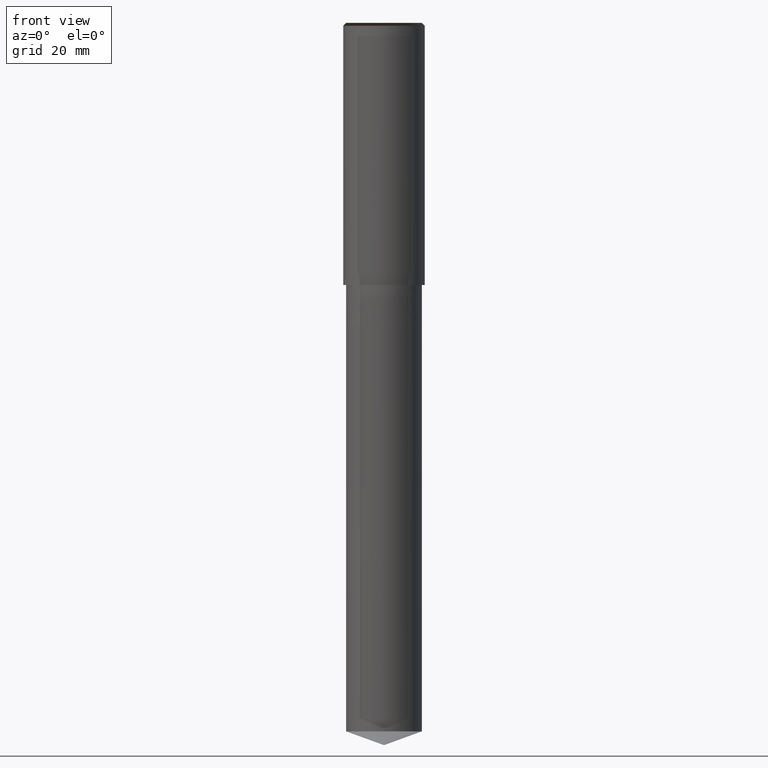
[diagram: clean part render]
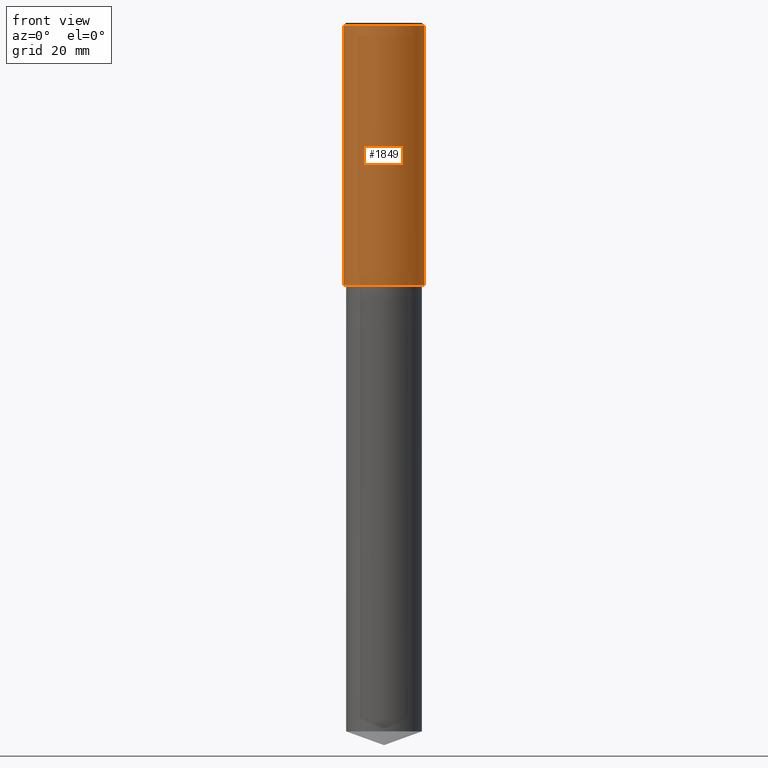
[diagram: same view with one face highlighted and labeled with its STEP entity id]
A machine part, front view. The second image highlights one B-rep face of the part: STEP entity #1849.
In plain terms, the highlighted face is a freeform B-spline surface patch.
Its self-contained STEP definition (entity closure, byte-faithful):
#1478=CARTESIAN_POINT('',(7.0,0.0,0.0));
#1482=CARTESIAN_POINT('',(-7.0,0.0,0.0));
#1483=CARTESIAN_POINT('',(7.0,0.0,44.5));
#1487=CARTESIAN_POINT('',(-7.0,0.0,44.5));
#1500=CARTESIAN_POINT('',(-7.0,-7.0,0.0));
#1501=CARTESIAN_POINT('',(0.0,-7.0,0.0));
#1502=CARTESIAN_POINT('',(7.0,-7.0,0.0));
#1503=CARTESIAN_POINT('',(-7.0,-7.0,44.5));
#1504=CARTESIAN_POINT('',(0.0,-7.0,44.5));
#1505=CARTESIAN_POINT('',(7.0,-7.0,44.5));
#1830=(
BOUNDED_SURFACE()
B_SPLINE_SURFACE(1,2,(
(#1482,#1500,#1501,#1502,#1478),
(#1487,#1503,#1504,#1505,#1483)
), .UNSPECIFIED.,.F.,.F.,.F.)
B_SPLINE_SURFACE_WITH_KNOTS((2,2),(3,2,3),(
0.0,1.0),(
0.0,0.5,1.0), .UNSPECIFIED.)
GEOMETRIC_REPRESENTATION_ITEM()
RATIONAL_B_SPLINE_SURFACE(((1.0,0.707106781187,1.0,0.707106781187,1.0),
(1.0,0.707106781187,1.0,0.707106781187,1.0)
))
REPRESENTATION_ITEM('')
SURFACE()
);
#1831=(
BOUNDED_CURVE()
B_SPLINE_CURVE(2,(#1478,#1502,#1501,#1500,#1482),.UNSPECIFIED.,.F.,.F.)
B_SPLINE_CURVE_WITH_KNOTS((3,2,3),
(0.0,0.5,1.0),.UNSPECIFIED.)
CURVE()
GEOMETRIC_REPRESENTATION_ITEM()
RATIONAL_B_SPLINE_CURVE((1.0,0.707106781187,1.0,0.707106781187,1.0))
REPRESENTATION_ITEM('')
);
#1832=(
BOUNDED_CURVE()
B_SPLINE_CURVE(1,(#1482,#1487),.UNSPECIFIED.,.F.,.F.)
B_SPLINE_CURVE_WITH_KNOTS((2,2),
(0.0,1.0),.UNSPECIFIED.)
CURVE()
GEOMETRIC_REPRESENTATION_ITEM()
RATIONAL_B_SPLINE_CURVE((1.0,1.0))
REPRESENTATION_ITEM('')
);
#1833=(
BOUNDED_CURVE()
B_SPLINE_CURVE(2,(#1487,#1503,#1504,#1505,#1483),.UNSPECIFIED.,.F.,.F.)
B_SPLINE_CURVE_WITH_KNOTS((3,2,3),
(0.0,0.5,1.0),.UNSPECIFIED.)
CURVE()
GEOMETRIC_REPRESENTATION_ITEM()
RATIONAL_B_SPLINE_CURVE((1.0,0.707106781187,1.0,0.707106781187,1.0))
REPRESENTATION_ITEM('')
);
#1834=(
BOUNDED_CURVE()
B_SPLINE_CURVE(1,(#1483,#1478),.UNSPECIFIED.,.F.,.F.)
B_SPLINE_CURVE_WITH_KNOTS((2,2),
(0.0,1.0),.UNSPECIFIED.)
CURVE()
GEOMETRIC_REPRESENTATION_ITEM()
RATIONAL_B_SPLINE_CURVE((1.0,1.0))
REPRESENTATION_ITEM('')
);
#1835=VERTEX_POINT('',#1478);
#1836=VERTEX_POINT('',#1482);
#1837=VERTEX_POINT('',#1483);
#1838=VERTEX_POINT('',#1487);
#1839=EDGE_CURVE('',#1835,#1836,#1831,.T.);
#1840=EDGE_CURVE('',#1836,#1838,#1832,.T.);
#1841=EDGE_CURVE('',#1838,#1837,#1833,.T.);
#1842=EDGE_CURVE('',#1837,#1835,#1834,.T.);
#1843=ORIENTED_EDGE('',*,*,#1839,.T.);
#1844=ORIENTED_EDGE('',*,*,#1840,.T.);
#1845=ORIENTED_EDGE('',*,*,#1841,.T.);
#1846=ORIENTED_EDGE('',*,*,#1842,.T.);
#1847=EDGE_LOOP('',(#1843,#1844,#1845,#1846));
#1848=FACE_OUTER_BOUND('',#1847,.T.);
#1849=ADVANCED_FACE('',(#1848),#1830,.T.);